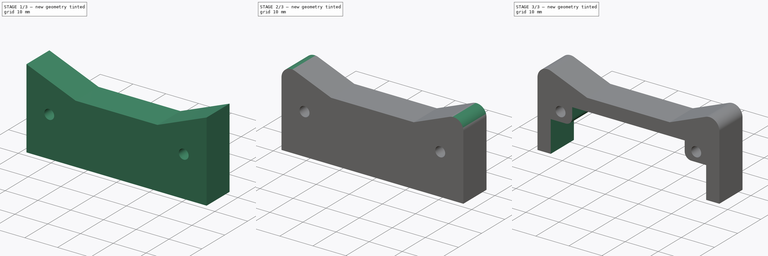
[diagram: build sequence overview — one tinted view per stage of 3, left to right]
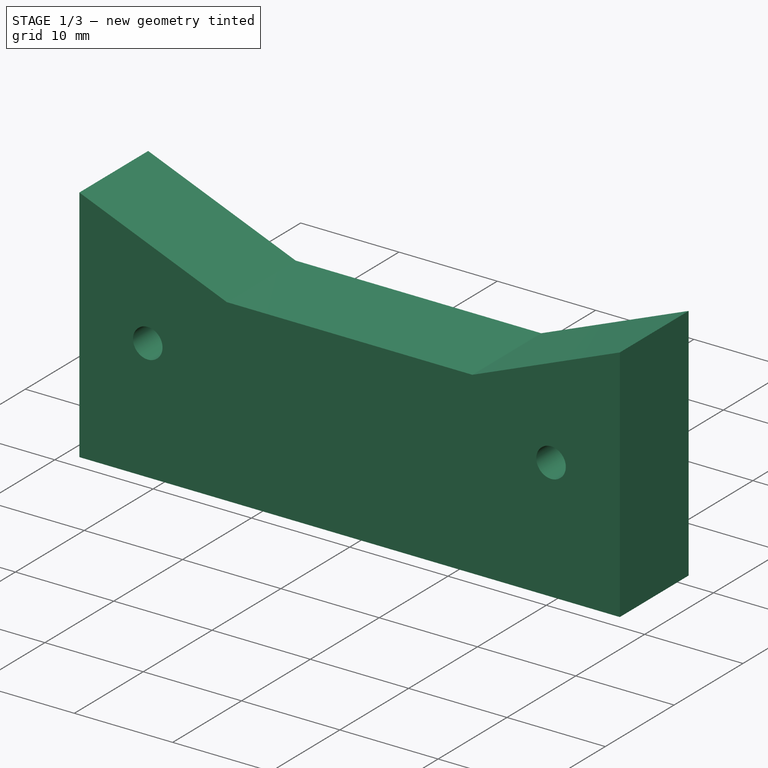
[diagram: stage 1 of 3 — iso view after this stage's code; geometry added in this stage tinted green]
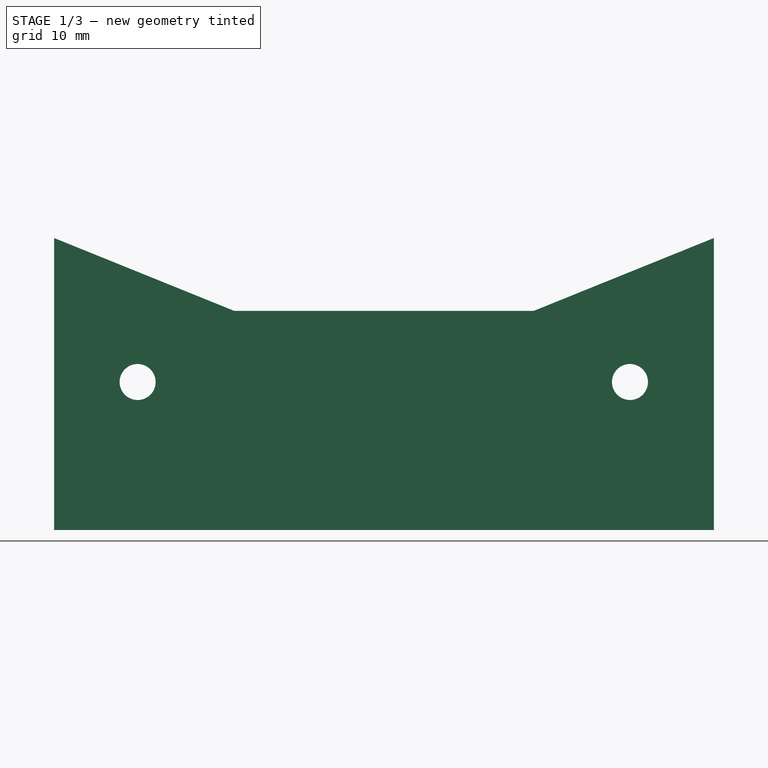
[diagram: stage 1 of 3 — front view after this stage's code; geometry added in this stage tinted green]
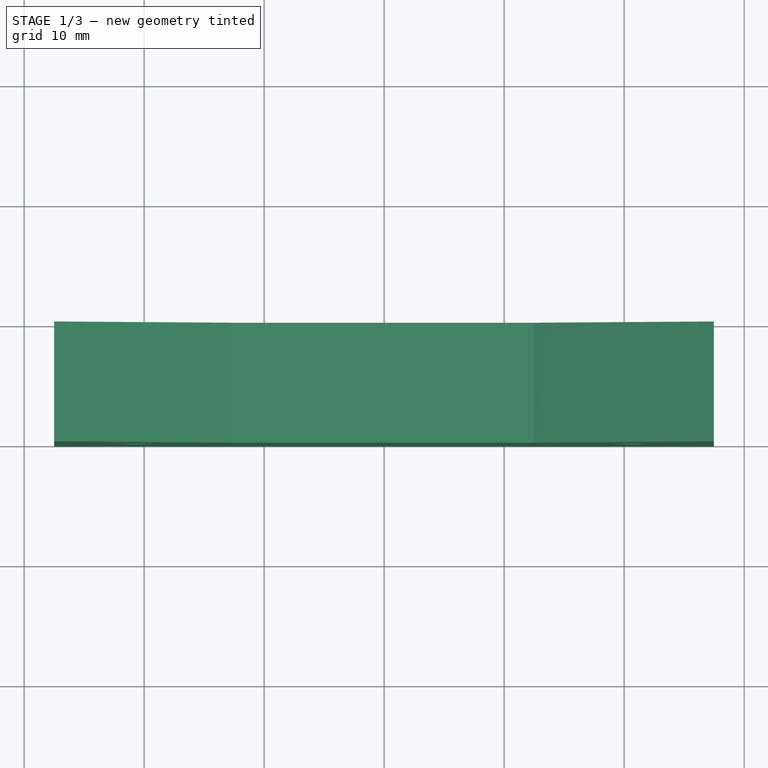
[diagram: stage 1 of 3 — top view after this stage's code; geometry added in this stage tinted green]
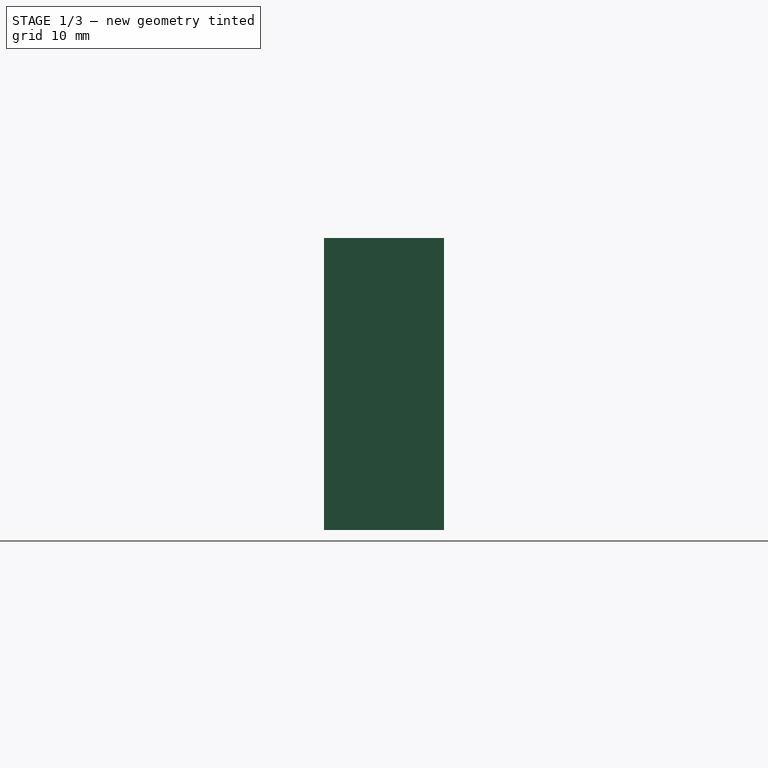
[diagram: stage 1 of 3 — right view after this stage's code; geometry added in this stage tinted green]
FCSTD DOCUMENT  (FreeCAD 0.16R6703 (Git))
Label: Espacer Tail 10mm
License: FreeArt
LicenseURL: http://artlibre.org/licence/lal
objects: Sketcher::SketchObject×3, PartDesign::Pocket×2, PartDesign::Fillet×2, PartDesign::Pad×1
note: 11 computed .brp shape members not serialized (recipe doc carries the construction recipe); baked Part::Feature solids carry a one-line shape summary decoded from their .brp

FEATURE [Sketcher::SketchObject] Sketch
  Placement = pos=(0,0,0) rot=(-1,0,0;4.71239rad)
  sketch-geometry (6):
    g0: LineSegment StartX=52.5 StartY=0 StartZ=0 EndX=52.5 EndY=24.328 EndZ=0
    g1: LineSegment StartX=52.5 StartY=24.328 StartZ=0 EndX=67.5019 EndY=18.2611 EndZ=0
    g2: LineSegment StartX=67.5019 StartY=18.2611 StartZ=0 EndX=92.4761 EndY=18.2611 EndZ=0
    g3: LineSegment StartX=92.4761 StartY=18.2611 StartZ=0 EndX=107.478 EndY=24.328 EndZ=0
    g4: LineSegment StartX=107.478 StartY=24.328 StartZ=0 EndX=107.478 EndY=0 EndZ=0
    g5: LineSegment StartX=107.478 StartY=0 StartZ=0 EndX=52.5 EndY=0 EndZ=0
  constraints (18):
    c: PointOnObject(g0,g-1)
    c: Vertical(g0)
    c: Coincident(g0,g1)
    c: Coincident(g1,g2)
    c: Horizontal(g2)
    c: Coincident(g2,g3)
    c: Coincident(g3,g4)
    c: PointOnObject(g4,g-1)
    c: Vertical(g4)
    c: Coincident(g4,g5)
    c: Coincident(g5,g0)
    c: DistanceX(g-2,g0) = 52.5
    c: DistanceY(g-1,g1) = 18.2611
    c: DistanceX(g-2,g1) = 67.5019
    c: Distance(g0,g5) = 24.328
    c: Equal(g1,g3)
    c: Equal(g4,g0)
    c: DistanceX(g-2,g4) = 107.478
FEATURE [PartDesign::Pad] Pad
  Length = 10
  Length2 = 100
  Placement = pos=(0,0,0) rot=(-1,0,0;4.71239rad)
  Sketch = -> Sketch
  Type = 0
FEATURE [Sketcher::SketchObject] Sketch001
  Placement = pos=(0,0,0) rot=(-1,0,0;1.5708rad)
  Support = -> Pad [Face7]
  sketch-geometry (3):
    g0: Circle CenterX=100.483 CenterY=-12.3298 CenterZ=0 NormalX=0 NormalY=0 NormalZ=1 Radius=1.5
    g1: LineSegment [constr] StartX=112.828 StartY=-12.3298 StartZ=0 EndX=42.0549 EndY=-12.3298 EndZ=0
    g2: Circle CenterX=59.4587 CenterY=-12.3298 CenterZ=0 NormalX=0 NormalY=0 NormalZ=1 Radius=1.5
  constraints (7):
    c: Radius(g0) = 1.5
    c: DistanceY(g-1,g0) = -12.3298
    c: DistanceX(g-2,g0) = 100.483
    c: Horizontal(g1)
    c: PointOnObject(g0,g1)
    c: PointOnObject(g2,g1)
    c: Radius(g2) = 1.5
FEATURE [PartDesign::Pocket] Pocket
  Length = 5
  Placement = pos=(0,0,0) rot=(-1,0,0;4.71239rad)
  Sketch = -> Sketch001
  Type = 1
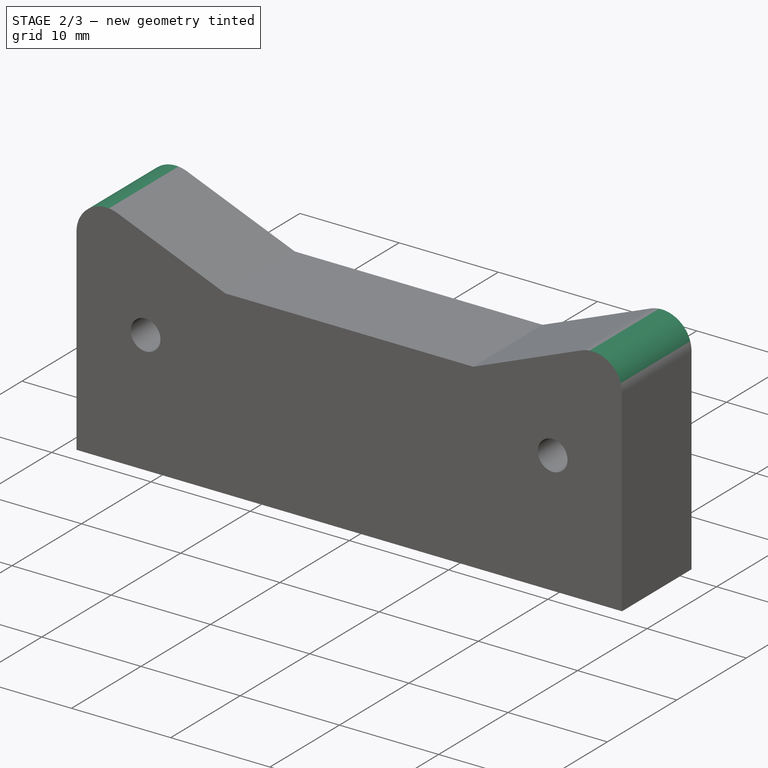
[diagram: stage 2 of 3 — iso view after this stage's code; geometry added in this stage tinted green]
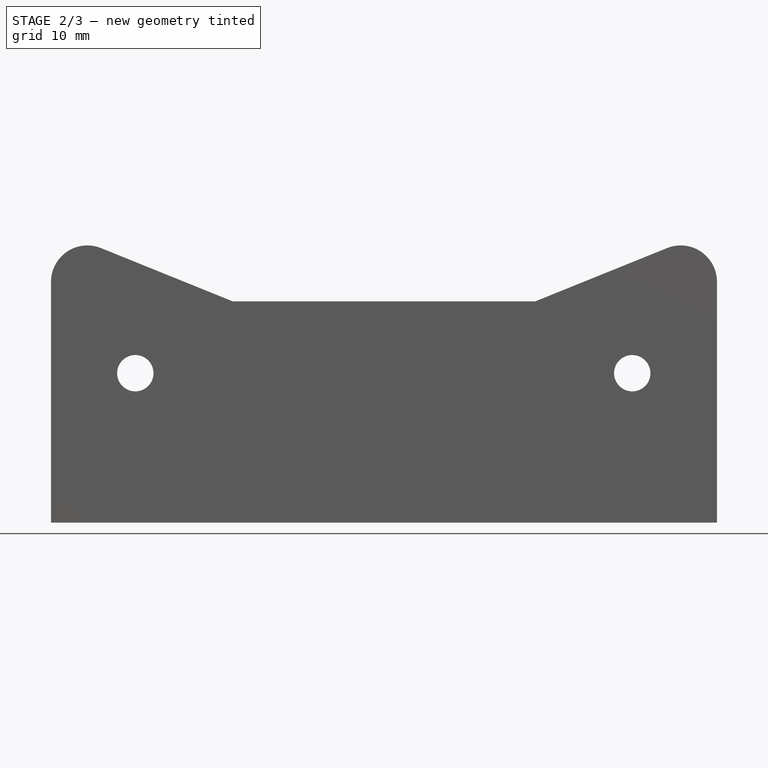
[diagram: stage 2 of 3 — front view after this stage's code; geometry added in this stage tinted green]
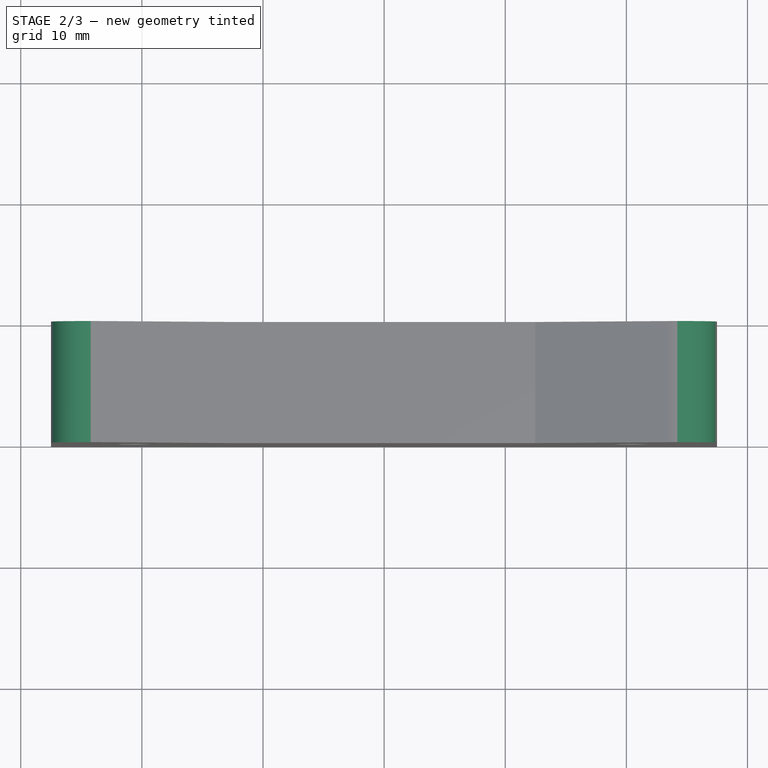
[diagram: stage 2 of 3 — top view after this stage's code; geometry added in this stage tinted green]
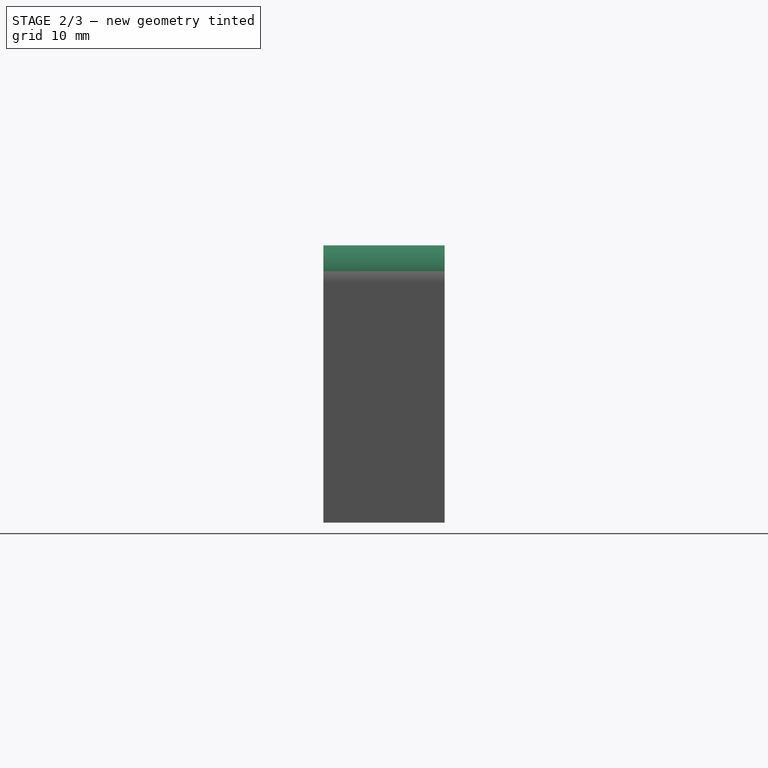
[diagram: stage 2 of 3 — right view after this stage's code; geometry added in this stage tinted green]
FEATURE [PartDesign::Fillet] Fillet
  Base = -> Pocket [Edge2,Edge21]
  Placement = pos=(0,0,0) rot=(-1,0,0;4.71239rad)
  Radius = 3
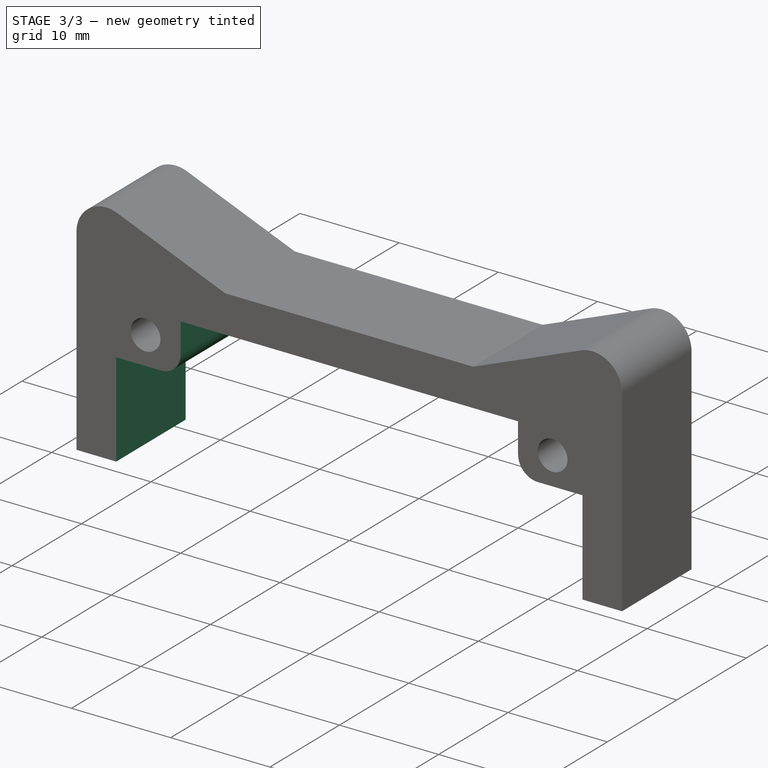
[diagram: stage 3 of 3 — iso view after this stage's code; geometry added in this stage tinted green]
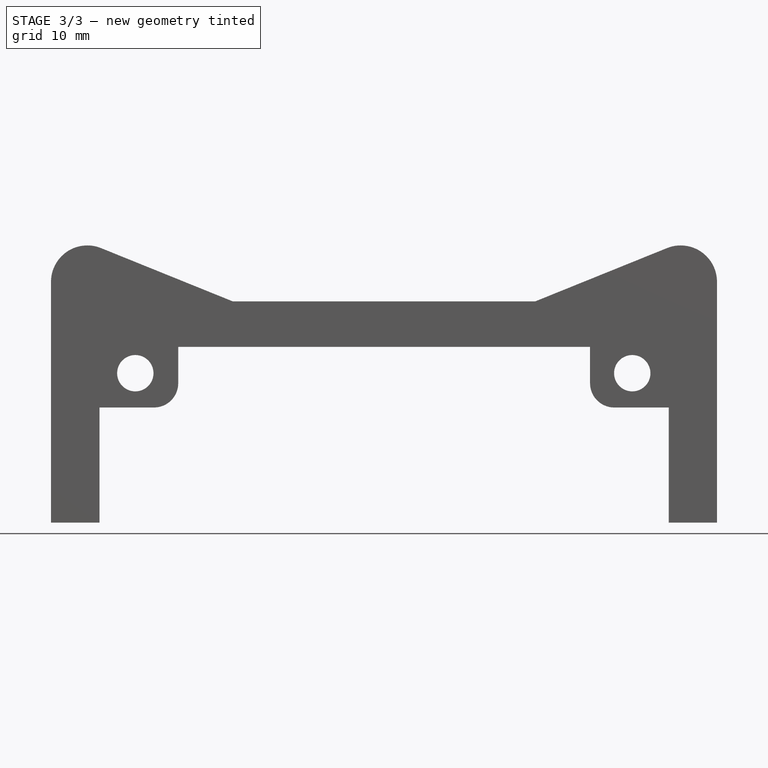
[diagram: stage 3 of 3 — front view after this stage's code; geometry added in this stage tinted green]
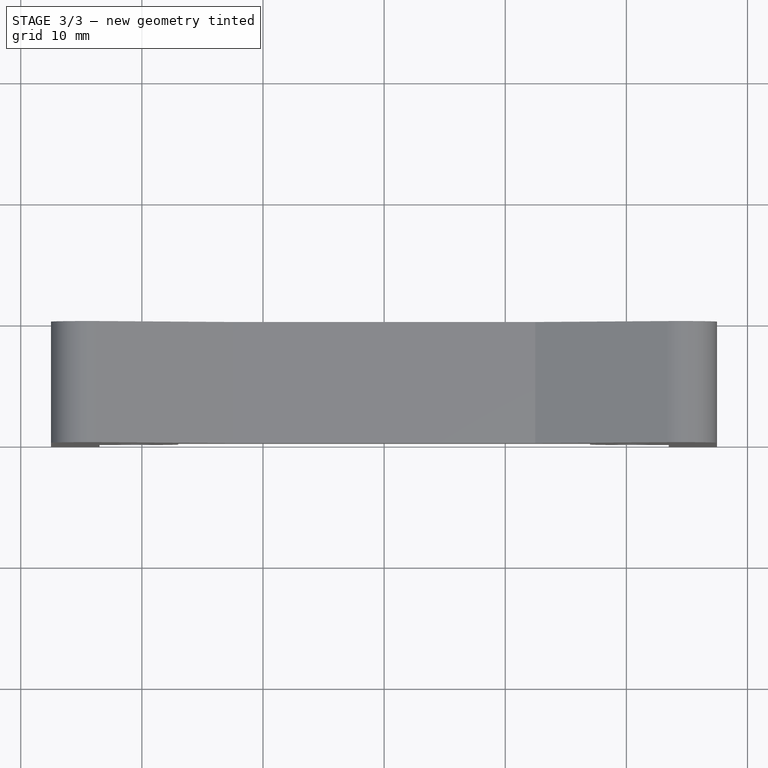
[diagram: stage 3 of 3 — top view after this stage's code; geometry added in this stage tinted green]
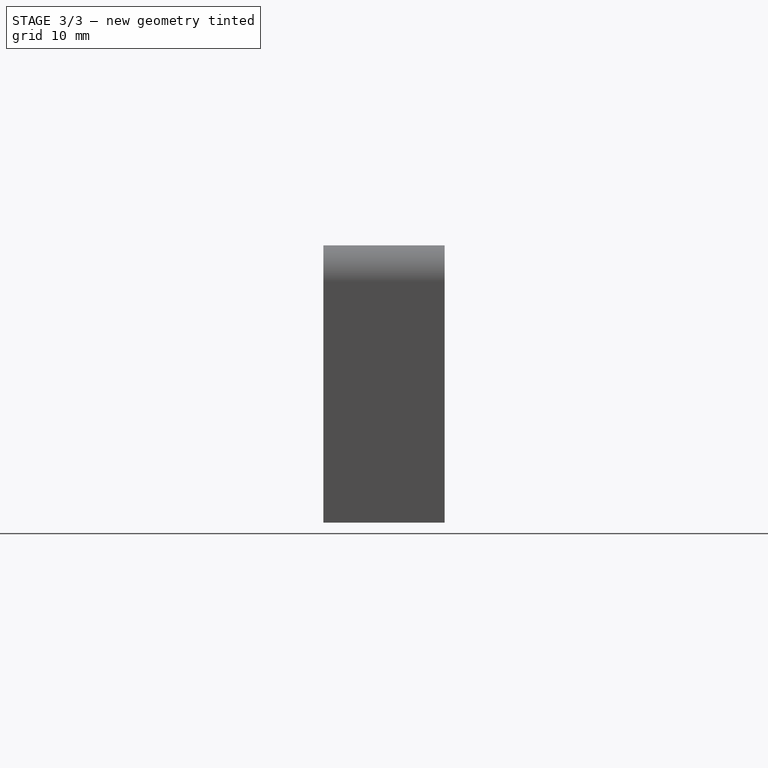
[diagram: stage 3 of 3 — right view after this stage's code; geometry added in this stage tinted green]
FEATURE [Sketcher::SketchObject] Sketch002
  Placement = pos=(0,-10,0) rot=(1,0,0;1.5708rad)
  Support = -> Fillet [Face5]
  sketch-geometry (10):
    g0: LineSegment StartX=56.5 StartY=0 StartZ=0 EndX=56.5 EndY=9.5 EndZ=0
    g1: LineSegment StartX=56.5 StartY=9.5 StartZ=0 EndX=63 EndY=9.5 EndZ=0
    g2: LineSegment StartX=63 StartY=9.5 StartZ=0 EndX=63 EndY=14.5 EndZ=0
    g3: LineSegment StartX=63 StartY=14.5 StartZ=0 EndX=97 EndY=14.5 EndZ=0
    g4: LineSegment StartX=97 StartY=14.5 StartZ=0 EndX=97 EndY=9.5 EndZ=0
    g5: LineSegment StartX=97 StartY=9.5 StartZ=0 EndX=103.5 EndY=9.5 EndZ=0
    g6: LineSegment StartX=103.5 StartY=9.5 StartZ=0 EndX=103.5 EndY=0 EndZ=0
    g7: LineSegment StartX=103.5 StartY=0 StartZ=0 EndX=56.5 EndY=0 EndZ=0
    g8: LineSegment [constr] StartX=52.5 StartY=-2.72837 StartZ=0 EndX=52.5 EndY=24.4149 EndZ=0
    g9: LineSegment [constr] StartX=107.5 StartY=-1.52934 StartZ=0 EndX=107.5 EndY=23.3133 EndZ=0
  constraints (29):
    c: PointOnObject(g0,g-1)
    c: Vertical(g0)
    c: Coincident(g0,g1)
    c: Horizontal(g1)
    c: Coincident(g1,g2)
    c: Coincident(g2,g3)
    c: Horizontal(g3)
    c: Coincident(g3,g4)
    c: Vertical(g4)
    c: Coincident(g4,g5)
    c: Horizontal(g5)
    c: Coincident(g5,g6)
    c: PointOnObject(g6,g-1)
    c: Vertical(g6)
    c: Coincident(g6,g7)
    c: Coincident(g7,g0)
    c: Vertical(g8)
    c: Vertical(g9)
    c: DistanceX(g-2,g9) = 107.5
    c: DistanceX(g-2,g8) = 52.5
    c: Distance(g6,g9) = 4
    c: Distance(g0,g8) = 4
    c: Equal(g6,g0)
    c: Equal(g1,g5)
    c: Vertical(g2)
    c: Equal(g2,g4)
    c: DistanceY(g0,g0) = 9.5
    c: DistanceY(g2,g2) = 5
    c: DistanceX(g3,g3) = 34
FEATURE [PartDesign::Pocket] Pocket001
  Length = 5
  Placement = pos=(0,0,0) rot=(-1,0,0;4.71239rad)
  Sketch = -> Sketch002
  Type = 1
FEATURE [PartDesign::Fillet] Fillet001
  Base = -> Pocket001 [Edge51,Edge48]
  Placement = pos=(0,0,0) rot=(-1,0,0;4.71239rad)
  Radius = 2
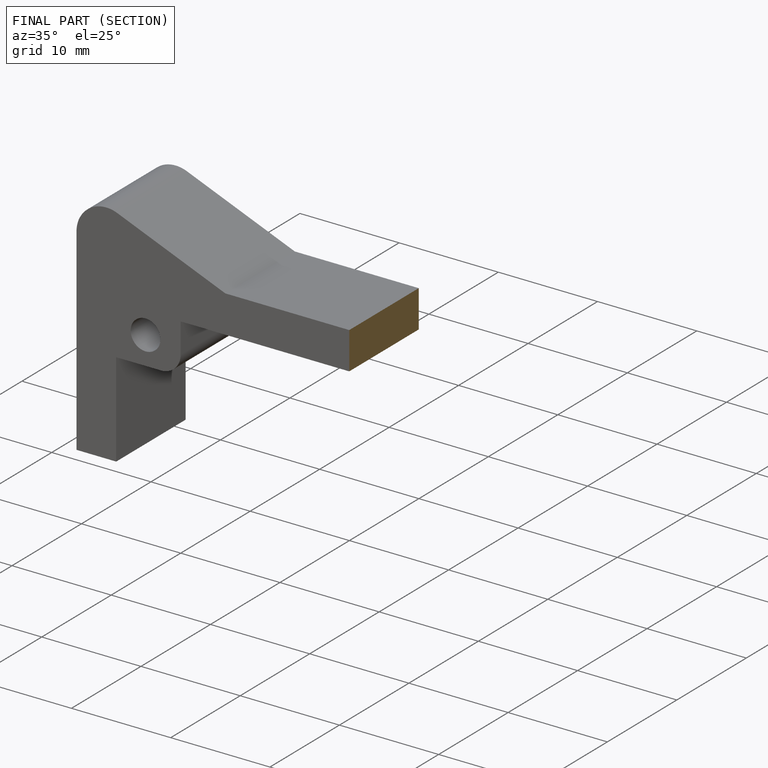
[diagram: finished part — half-section view (interior)]
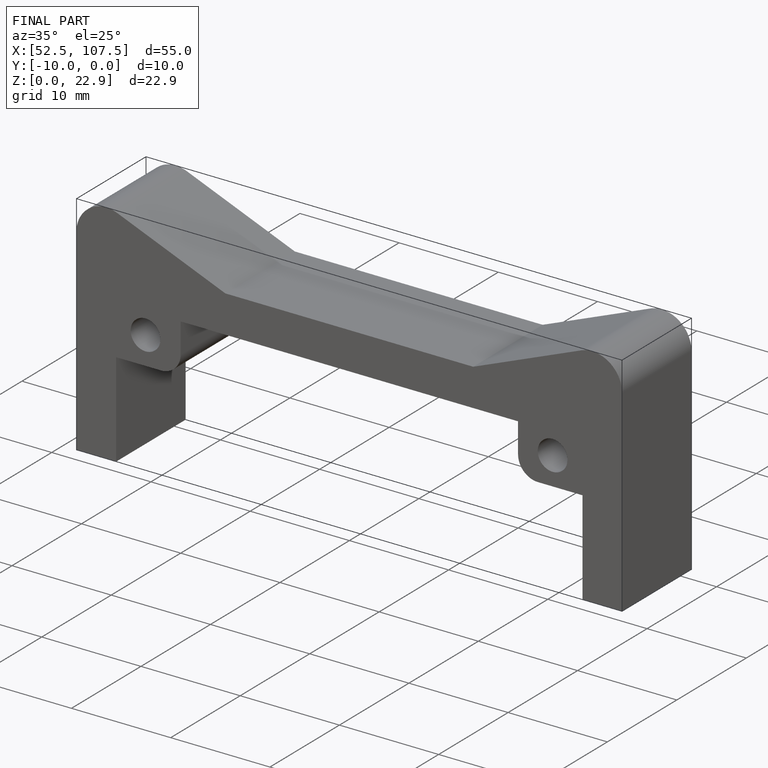
[diagram: finished part — iso view with bounding-box wireframe]
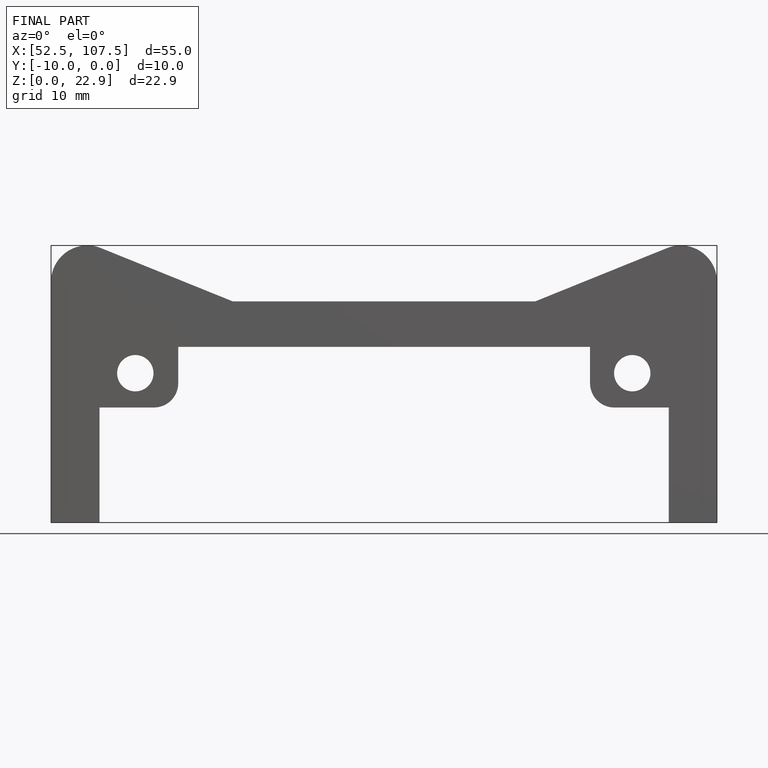
[diagram: finished part — front view with bounding-box wireframe]
